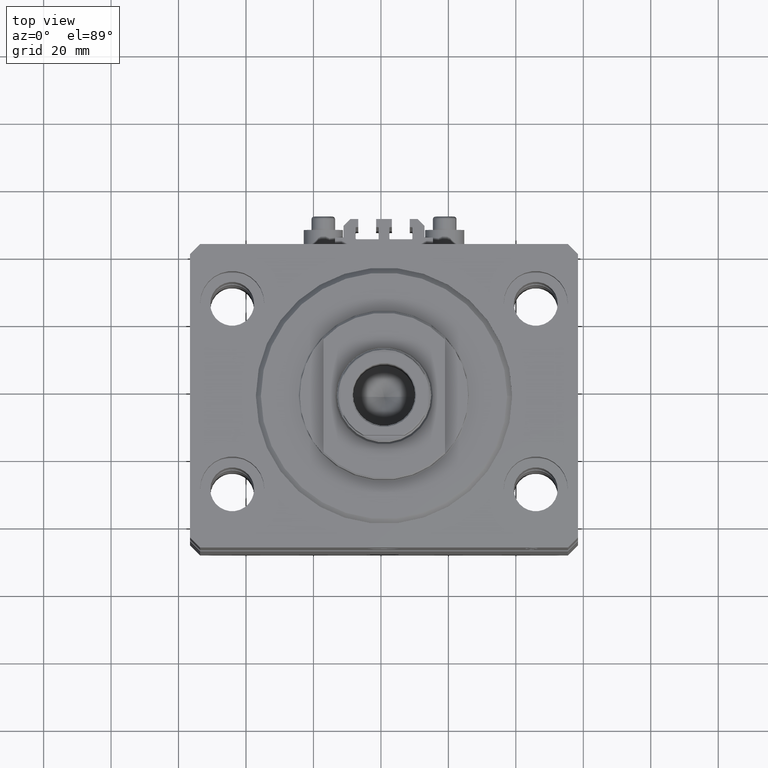
[diagram: clean part render]
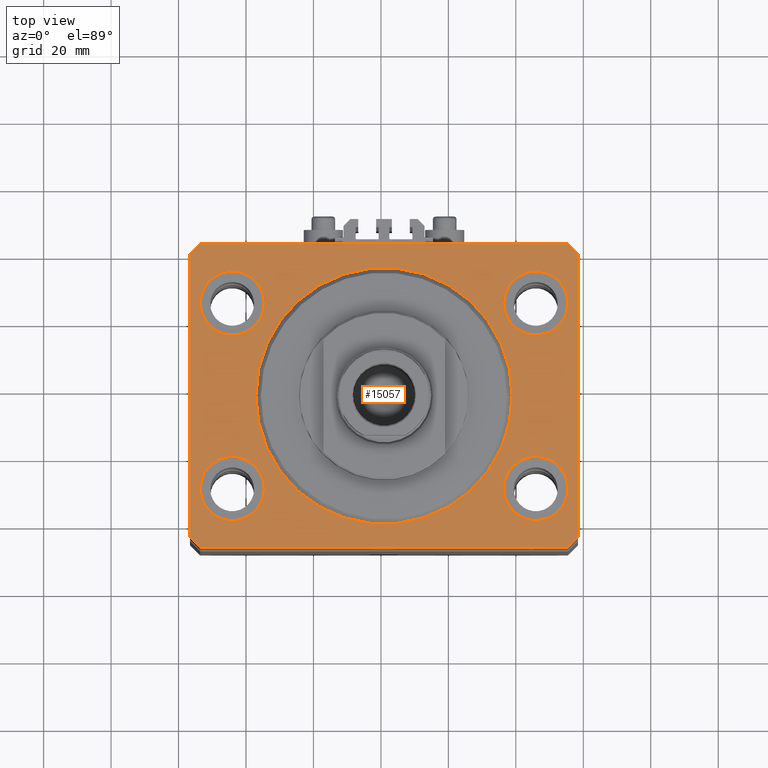
[diagram: same view with one face highlighted and labeled with its STEP entity id]
A machine part, top view. The second image highlights one B-rep face of the part: STEP entity #15057.
In plain terms, the highlighted planar face has unit normal (0, 0, 1).
Its self-contained STEP definition (entity closure, byte-faithful):
#145 = CARTESIAN_POINT ( 'NONE',  ( 0.000000000000000000, 0.000000000000000000, 0.000000000000000000 ) ) ;
#662 = CARTESIAN_POINT ( 'NONE',  ( 54.50000000000000711, -44.99999999999998579, 0.000000000000000000 ) ) ;
#966 = CARTESIAN_POINT ( 'NONE',  ( -57.49999999999998579, 42.00000000000000711, 0.000000000000000000 ) ) ;
#1381 = VERTEX_POINT ( 'NONE', #662 ) ;
#1493 = CARTESIAN_POINT ( 'NONE',  ( 54.50000000000058975, 45.00000000000002842, 0.000000000000000000 ) ) ;
#1645 = VERTEX_POINT ( 'NONE', #15122 ) ;
#1876 = CIRCLE ( 'NONE', #28591, 9.500000000000001776 ) ;
#2399 = PLANE ( 'NONE',  #9503 ) ;
#2531 = CIRCLE ( 'NONE', #40296, 9.500000000000001776 ) ;
#3161 = DIRECTION ( 'NONE',  ( 1.000000000000000000, 0.000000000000000000, 0.000000000000000000 ) ) ;
#3596 = VERTEX_POINT ( 'NONE', #31988 ) ;
#3746 = DIRECTION ( 'NONE',  ( 1.000000000000000000, 0.000000000000000000, 0.000000000000000000 ) ) ;
#4057 = DIRECTION ( 'NONE',  ( 1.000000000000000000, 0.000000000000000000, 0.000000000000000000 ) ) ;
#4695 = LINE ( 'NONE', #5424, #5751 ) ;
#4880 = LINE ( 'NONE', #966, #45633 ) ;
#5266 = EDGE_CURVE ( 'NONE', #38574, #27507, #1876, .T. ) ;
#5424 = CARTESIAN_POINT ( 'NONE',  ( 54.50000000000000711, -44.99999999999998579, 0.000000000000000000 ) ) ;
#5606 = CIRCLE ( 'NONE', #42574, 9.500000000000001776 ) ;
#5751 = VECTOR ( 'NONE', #12839, 1000.000000000000000 ) ;
#6004 = DIRECTION ( 'NONE',  ( -0.7071067811865483499, -0.7071067811865466846, 0.000000000000000000 ) ) ;
#6025 = EDGE_LOOP ( 'NONE', ( #40485, #47903 ) ) ;
#6293 = VECTOR ( 'NONE', #25391, 999.9999999999998863 ) ;
#7162 = CARTESIAN_POINT ( 'NONE',  ( -54.50000000000000000, 27.50000000000000355, 0.000000000000000000 ) ) ;
#7539 = DIRECTION ( 'NONE',  ( 6.443258625056715108E-15, 1.000000000000000000, 0.000000000000000000 ) ) ;
#7813 = ORIENTED_EDGE ( 'NONE', *, *, #25673, .F. ) ;
#8846 = VECTOR ( 'NONE', #7539, 1000.000000000000000 ) ;
#9237 = VERTEX_POINT ( 'NONE', #39718 ) ;
#9503 = AXIS2_PLACEMENT_3D ( 'NONE', #32427, #28734, #10032 ) ;
#9538 = DIRECTION ( 'NONE',  ( 1.000000000000000000, 0.000000000000000000, 0.000000000000000000 ) ) ;
#9539 = VERTEX_POINT ( 'NONE', #18135 ) ;
#10032 = DIRECTION ( 'NONE',  ( 1.000000000000000000, 0.000000000000000000, -0.000000000000000000 ) ) ;
#10126 = EDGE_CURVE ( 'NONE', #20829, #9237, #47576, .T. ) ;
#10530 = EDGE_CURVE ( 'NONE', #35251, #45380, #4880, .T. ) ;
#11163 = AXIS2_PLACEMENT_3D ( 'NONE', #48415, #14665, #28945 ) ;
#11239 = CIRCLE ( 'NONE', #42690, 9.500000000000001776 ) ;
#11504 = VERTEX_POINT ( 'NONE', #14459 ) ;
#11714 = AXIS2_PLACEMENT_3D ( 'NONE', #26534, #41347, #12276 ) ;
#12030 = CIRCLE ( 'NONE', #25377, 9.500000000000001776 ) ;
#12276 = DIRECTION ( 'NONE',  ( 1.000000000000000000, 0.000000000000000000, 0.000000000000000000 ) ) ;
#12658 = VERTEX_POINT ( 'NONE', #39493 ) ;
#12839 = DIRECTION ( 'NONE',  ( 0.7071067811865483499, 0.7071067811865466846, 0.000000000000000000 ) ) ;
#13250 = ORIENTED_EDGE ( 'NONE', *, *, #20013, .F. ) ;
#13290 = DIRECTION ( 'NONE',  ( 1.000000000000000000, 0.000000000000000000, 0.000000000000000000 ) ) ;
#14100 = CARTESIAN_POINT ( 'NONE',  ( -54.49999999999999289, 45.00000000000000000, 0.000000000000000000 ) ) ;
#14459 = CARTESIAN_POINT ( 'NONE',  ( 54.50000000000000000, 27.50000000000001776, 0.000000000000000000 ) ) ;
#14665 = DIRECTION ( 'NONE',  ( 0.000000000000000000, 0.000000000000000000, 1.000000000000000000 ) ) ;
#14695 = CARTESIAN_POINT ( 'NONE',  ( -35.50000000000000000, 27.50000000000000355, 0.000000000000000000 ) ) ;
#15057 = ADVANCED_FACE ( 'NONE', ( #24553, #35667, #28490, #39127, #21093, #35895 ), #2399, .T. ) ;
#15122 = CARTESIAN_POINT ( 'NONE',  ( 54.50000000000000000, -27.49999999999999645, 0.000000000000000000 ) ) ;
#15142 = DIRECTION ( 'NONE',  ( 0.000000000000000000, 0.000000000000000000, 1.000000000000000000 ) ) ;
#15180 = CIRCLE ( 'NONE', #42723, 38.00000000000000000 ) ;
#15475 = EDGE_LOOP ( 'NONE', ( #43659, #13250 ) ) ;
#16445 = CARTESIAN_POINT ( 'NONE',  ( -45.00000000000000000, -27.49999999999999645, 0.000000000000000000 ) ) ;
#16952 = CARTESIAN_POINT ( 'NONE',  ( 57.50000000000000711, -41.99999999999998579, 0.000000000000000000 ) ) ;
#17820 = CARTESIAN_POINT ( 'NONE',  ( -54.49999999999999289, 45.00000000000000000, 0.000000000000000000 ) ) ;
#18135 = CARTESIAN_POINT ( 'NONE',  ( 35.50000000000000000, -27.49999999999999645, 0.000000000000000000 ) ) ;
#18508 = EDGE_CURVE ( 'NONE', #11504, #22297, #39498, .T. ) ;
#19499 = EDGE_CURVE ( 'NONE', #29161, #20829, #23029, .T. ) ;
#19950 = LINE ( 'NONE', #1493, #43669 ) ;
#20013 = EDGE_CURVE ( 'NONE', #27507, #38574, #11239, .T. ) ;
#20124 = DIRECTION ( 'NONE',  ( 0.000000000000000000, 0.000000000000000000, 1.000000000000000000 ) ) ;
#20190 = DIRECTION ( 'NONE',  ( -1.000000000000000000, -2.546383084002639322E-16, 0.000000000000000000 ) ) ;
#20338 = CIRCLE ( 'NONE', #11714, 9.500000000000001776 ) ;
#20388 = VERTEX_POINT ( 'NONE', #47323 ) ;
#20829 = VERTEX_POINT ( 'NONE', #33642 ) ;
#21093 = FACE_BOUND ( 'NONE', #6025, .T. ) ;
#21241 = EDGE_LOOP ( 'NONE', ( #41027, #37299 ) ) ;
#21352 = CIRCLE ( 'NONE', #34726, 38.00000000000000000 ) ;
#21398 = CARTESIAN_POINT ( 'NONE',  ( -57.49999999999998579, 42.00000000000000711, 0.000000000000000000 ) ) ;
#22277 = ORIENTED_EDGE ( 'NONE', *, *, #10126, .T. ) ;
#22297 = VERTEX_POINT ( 'NONE', #36022 ) ;
#22427 = EDGE_LOOP ( 'NONE', ( #45142, #28553 ) ) ;
#22792 = ORIENTED_EDGE ( 'NONE', *, *, #43593, .T. ) ;
#23029 = LINE ( 'NONE', #45209, #8846 ) ;
#23816 = CARTESIAN_POINT ( 'NONE',  ( -45.00000000000000000, 27.50000000000000355, 0.000000000000000000 ) ) ;
#23990 = ORIENTED_EDGE ( 'NONE', *, *, #19499, .T. ) ;
#24553 = FACE_BOUND ( 'NONE', #36399, .T. ) ;
#24728 = VECTOR ( 'NONE', #6004, 1000.000000000000000 ) ;
#25377 = AXIS2_PLACEMENT_3D ( 'NONE', #48078, #29838, #3746 ) ;
#25391 = DIRECTION ( 'NONE',  ( -0.7071067811865376918, 0.7071067811865574537, 0.000000000000000000 ) ) ;
#25468 = DIRECTION ( 'NONE',  ( 1.000000000000000000, 0.000000000000000000, 0.000000000000000000 ) ) ;
#25673 = EDGE_CURVE ( 'NONE', #12658, #42165, #34214, .T. ) ;
#26185 = CARTESIAN_POINT ( 'NONE',  ( -54.50000000000000000, -27.49999999999999645, 0.000000000000000000 ) ) ;
#26534 = CARTESIAN_POINT ( 'NONE',  ( 45.00000000000000000, -27.49999999999999645, 0.000000000000000000 ) ) ;
#26991 = EDGE_LOOP ( 'NONE', ( #45909, #33137, #39994, #33067, #22792, #30640, #23990, #22277 ) ) ;
#27115 = EDGE_CURVE ( 'NONE', #30966, #35251, #47621, .T. ) ;
#27507 = VERTEX_POINT ( 'NONE', #7162 ) ;
#28194 = CARTESIAN_POINT ( 'NONE',  ( 45.00000000000000000, 27.50000000000001776, 0.000000000000000000 ) ) ;
#28276 = EDGE_CURVE ( 'NONE', #45380, #42147, #42681, .T. ) ;
#28490 = FACE_BOUND ( 'NONE', #22427, .T. ) ;
#28553 = ORIENTED_EDGE ( 'NONE', *, *, #39272, .F. ) ;
#28591 = AXIS2_PLACEMENT_3D ( 'NONE', #34581, #41733, #30880 ) ;
#28683 = EDGE_CURVE ( 'NONE', #9237, #30966, #19950, .T. ) ;
#28734 = DIRECTION ( 'NONE',  ( 0.000000000000000000, 0.000000000000000000, 1.000000000000000000 ) ) ;
#28945 = DIRECTION ( 'NONE',  ( 1.000000000000000000, 0.000000000000000000, 0.000000000000000000 ) ) ;
#29161 = VERTEX_POINT ( 'NONE', #16952 ) ;
#29736 = DIRECTION ( 'NONE',  ( 0.000000000000000000, 0.000000000000000000, 1.000000000000000000 ) ) ;
#29838 = DIRECTION ( 'NONE',  ( 0.000000000000000000, 0.000000000000000000, 1.000000000000000000 ) ) ;
#29878 = CARTESIAN_POINT ( 'NONE',  ( -54.50000000000000711, -45.00000000000000000, 0.000000000000000000 ) ) ;
#30640 = ORIENTED_EDGE ( 'NONE', *, *, #47257, .T. ) ;
#30880 = DIRECTION ( 'NONE',  ( 1.000000000000000000, 0.000000000000000000, 0.000000000000000000 ) ) ;
#30966 = VERTEX_POINT ( 'NONE', #14100 ) ;
#31456 = DIRECTION ( 'NONE',  ( -2.478176394252581141E-16, -1.000000000000000000, 0.000000000000000000 ) ) ;
#31988 = CARTESIAN_POINT ( 'NONE',  ( 38.00000000000000000, 0.000000000000000000, 0.000000000000000000 ) ) ;
#32427 = CARTESIAN_POINT ( 'NONE',  ( 0.000000000000000000, 0.000000000000000000, 0.000000000000000000 ) ) ;
#32620 = CARTESIAN_POINT ( 'NONE',  ( -57.50000000000000711, -42.00000000000000711, 0.000000000000000000 ) ) ;
#33067 = ORIENTED_EDGE ( 'NONE', *, *, #28276, .T. ) ;
#33137 = ORIENTED_EDGE ( 'NONE', *, *, #27115, .T. ) ;
#33642 = CARTESIAN_POINT ( 'NONE',  ( 57.50000000000055422, 41.99999999999997868, 0.000000000000000000 ) ) ;
#34063 = VECTOR ( 'NONE', #48259, 1000.000000000000000 ) ;
#34208 = VECTOR ( 'NONE', #35527, 1000.000000000000114 ) ;
#34214 = CIRCLE ( 'NONE', #46008, 9.500000000000001776 ) ;
#34258 = EDGE_CURVE ( 'NONE', #1645, #9539, #20338, .T. ) ;
#34581 = CARTESIAN_POINT ( 'NONE',  ( -45.00000000000000000, 27.50000000000000355, 0.000000000000000000 ) ) ;
#34726 = AXIS2_PLACEMENT_3D ( 'NONE', #145, #15142, #4057 ) ;
#35251 = VERTEX_POINT ( 'NONE', #21398 ) ;
#35527 = DIRECTION ( 'NONE',  ( 0.7071067811865491270, -0.7071067811865459074, 0.000000000000000000 ) ) ;
#35667 = FACE_BOUND ( 'NONE', #21241, .T. ) ;
#35895 = FACE_OUTER_BOUND ( 'NONE', #26991, .T. ) ;
#36022 = CARTESIAN_POINT ( 'NONE',  ( 35.50000000000000000, 27.50000000000001776, 0.000000000000000000 ) ) ;
#36205 = CARTESIAN_POINT ( 'NONE',  ( -54.50000000000000711, -45.00000000000000000, 0.000000000000000000 ) ) ;
#36399 = EDGE_LOOP ( 'NONE', ( #7813, #43203 ) ) ;
#37299 = ORIENTED_EDGE ( 'NONE', *, *, #46478, .F. ) ;
#38050 = CARTESIAN_POINT ( 'NONE',  ( 0.000000000000000000, 0.000000000000000000, 0.000000000000000000 ) ) ;
#38574 = VERTEX_POINT ( 'NONE', #14695 ) ;
#39127 = FACE_BOUND ( 'NONE', #15475, .T. ) ;
#39227 = CARTESIAN_POINT ( 'NONE',  ( -57.50000000000000711, -42.00000000000000711, 0.000000000000000000 ) ) ;
#39272 = EDGE_CURVE ( 'NONE', #22297, #11504, #5606, .T. ) ;
#39493 = CARTESIAN_POINT ( 'NONE',  ( -35.50000000000000000, -27.49999999999999645, 0.000000000000000000 ) ) ;
#39498 = CIRCLE ( 'NONE', #11163, 9.500000000000001776 ) ;
#39718 = CARTESIAN_POINT ( 'NONE',  ( 54.50000000000058975, 45.00000000000002842, 0.000000000000000000 ) ) ;
#39994 = ORIENTED_EDGE ( 'NONE', *, *, #10530, .T. ) ;
#40146 = EDGE_CURVE ( 'NONE', #3596, #20388, #21352, .T. ) ;
#40296 = AXIS2_PLACEMENT_3D ( 'NONE', #16445, #42309, #46485 ) ;
#40362 = CARTESIAN_POINT ( 'NONE',  ( -45.00000000000000000, -27.49999999999999645, 0.000000000000000000 ) ) ;
#40485 = ORIENTED_EDGE ( 'NONE', *, *, #40146, .F. ) ;
#41027 = ORIENTED_EDGE ( 'NONE', *, *, #34258, .F. ) ;
#41347 = DIRECTION ( 'NONE',  ( 0.000000000000000000, 0.000000000000000000, 1.000000000000000000 ) ) ;
#41733 = DIRECTION ( 'NONE',  ( 0.000000000000000000, 0.000000000000000000, 1.000000000000000000 ) ) ;
#41807 = EDGE_CURVE ( 'NONE', #42165, #12658, #2531, .T. ) ;
#42147 = VERTEX_POINT ( 'NONE', #29878 ) ;
#42165 = VERTEX_POINT ( 'NONE', #26185 ) ;
#42309 = DIRECTION ( 'NONE',  ( 0.000000000000000000, 0.000000000000000000, 1.000000000000000000 ) ) ;
#42574 = AXIS2_PLACEMENT_3D ( 'NONE', #28194, #43968, #25468 ) ;
#42681 = LINE ( 'NONE', #39227, #34208 ) ;
#42690 = AXIS2_PLACEMENT_3D ( 'NONE', #23816, #20124, #9538 ) ;
#42723 = AXIS2_PLACEMENT_3D ( 'NONE', #38050, #47033, #13290 ) ;
#43203 = ORIENTED_EDGE ( 'NONE', *, *, #41807, .F. ) ;
#43479 = EDGE_CURVE ( 'NONE', #20388, #3596, #15180, .T. ) ;
#43593 = EDGE_CURVE ( 'NONE', #42147, #1381, #47278, .T. ) ;
#43659 = ORIENTED_EDGE ( 'NONE', *, *, #5266, .F. ) ;
#43669 = VECTOR ( 'NONE', #20190, 1000.000000000000000 ) ;
#43898 = CARTESIAN_POINT ( 'NONE',  ( 57.50000000000055422, 41.99999999999997868, 0.000000000000000000 ) ) ;
#43968 = DIRECTION ( 'NONE',  ( 0.000000000000000000, 0.000000000000000000, 1.000000000000000000 ) ) ;
#45142 = ORIENTED_EDGE ( 'NONE', *, *, #18508, .F. ) ;
#45209 = CARTESIAN_POINT ( 'NONE',  ( 57.50000000000000711, -41.99999999999998579, 0.000000000000000000 ) ) ;
#45380 = VERTEX_POINT ( 'NONE', #32620 ) ;
#45633 = VECTOR ( 'NONE', #31456, 1000.000000000000000 ) ;
#45909 = ORIENTED_EDGE ( 'NONE', *, *, #28683, .T. ) ;
#46008 = AXIS2_PLACEMENT_3D ( 'NONE', #40362, #29736, #3161 ) ;
#46478 = EDGE_CURVE ( 'NONE', #9539, #1645, #12030, .T. ) ;
#46485 = DIRECTION ( 'NONE',  ( 1.000000000000000000, 0.000000000000000000, 0.000000000000000000 ) ) ;
#47033 = DIRECTION ( 'NONE',  ( 0.000000000000000000, 0.000000000000000000, 1.000000000000000000 ) ) ;
#47257 = EDGE_CURVE ( 'NONE', #1381, #29161, #4695, .T. ) ;
#47278 = LINE ( 'NONE', #36205, #34063 ) ;
#47323 = CARTESIAN_POINT ( 'NONE',  ( -38.00000000000000000, 4.653657836759941941E-15, 0.000000000000000000 ) ) ;
#47576 = LINE ( 'NONE', #43898, #6293 ) ;
#47621 = LINE ( 'NONE', #17820, #24728 ) ;
#47903 = ORIENTED_EDGE ( 'NONE', *, *, #43479, .F. ) ;
#48078 = CARTESIAN_POINT ( 'NONE',  ( 45.00000000000000000, -27.49999999999999645, 0.000000000000000000 ) ) ;
#48259 = DIRECTION ( 'NONE',  ( 1.000000000000000000, 1.273191542001326317E-16, 0.000000000000000000 ) ) ;
#48415 = CARTESIAN_POINT ( 'NONE',  ( 45.00000000000000000, 27.50000000000001776, 0.000000000000000000 ) ) ;